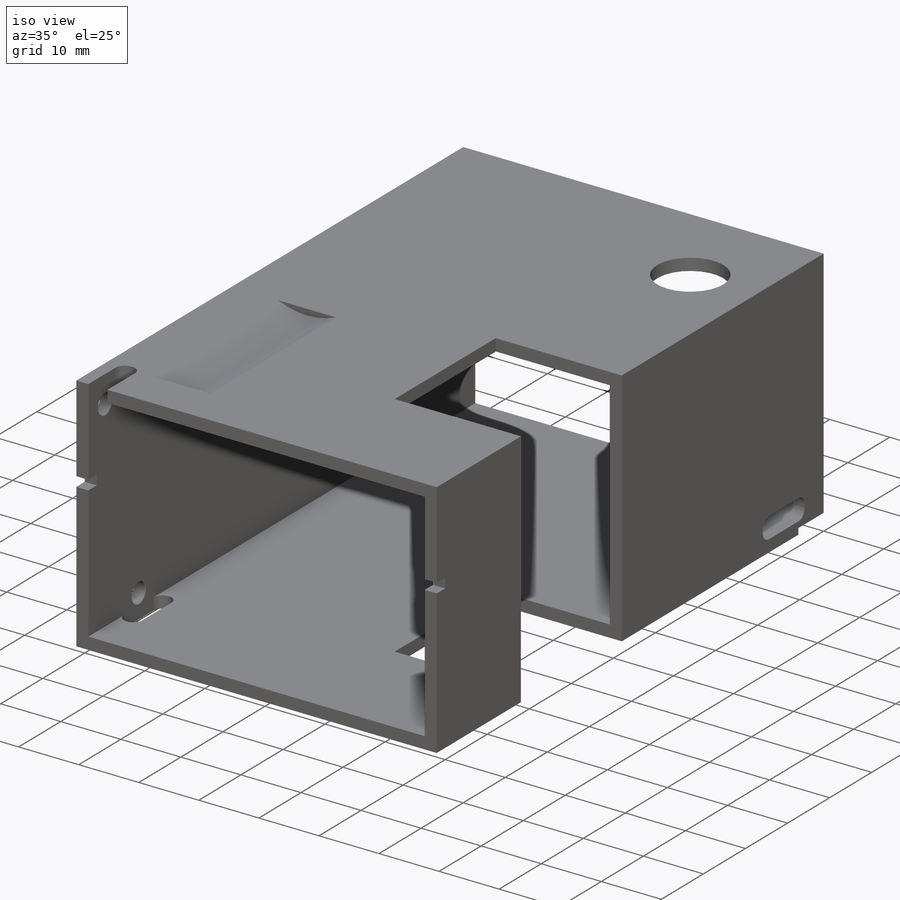
[diagram: iso view]
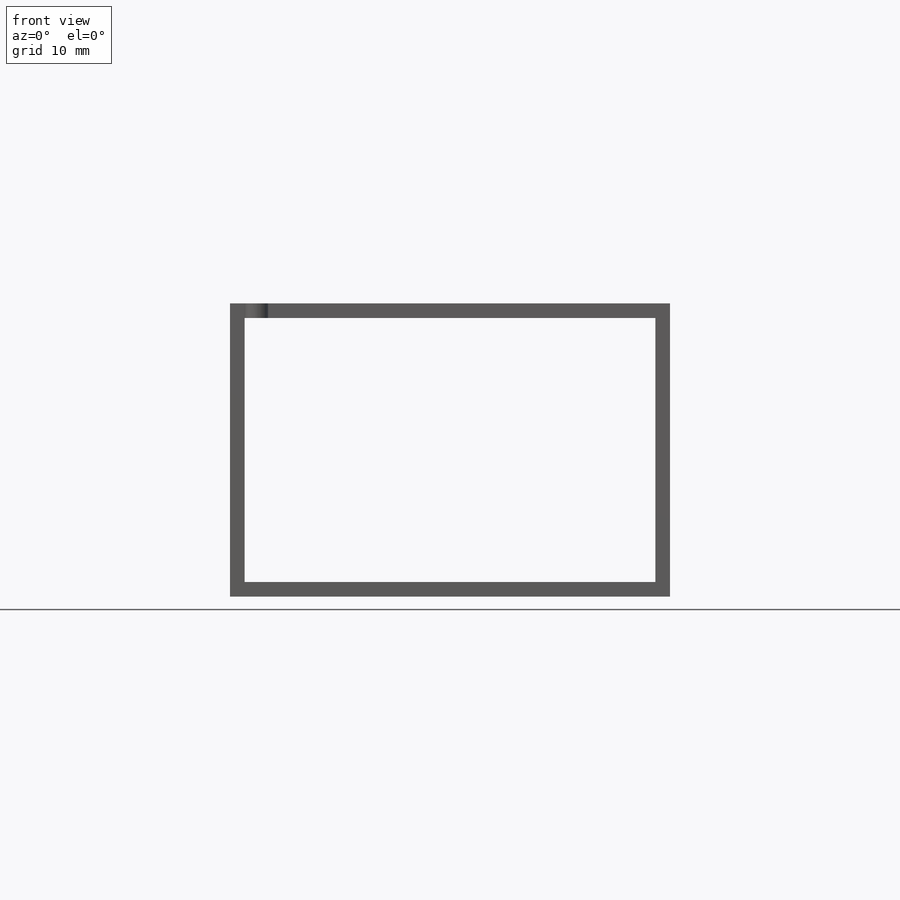
[diagram: front view]
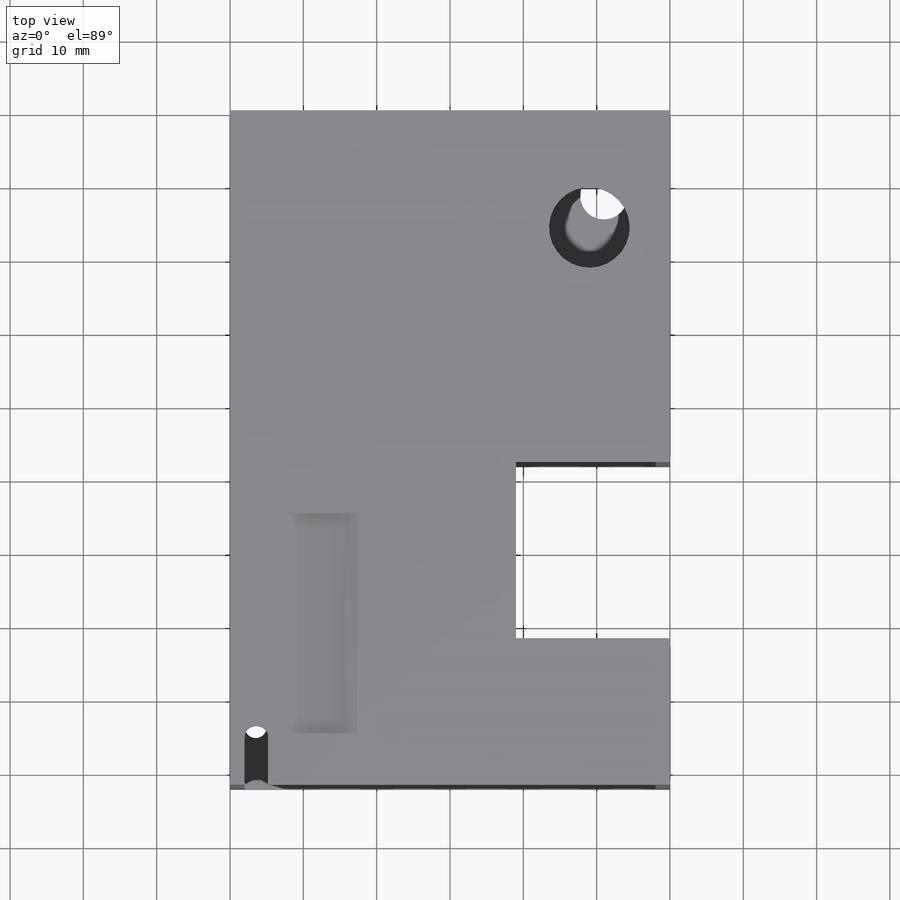
[diagram: top view]
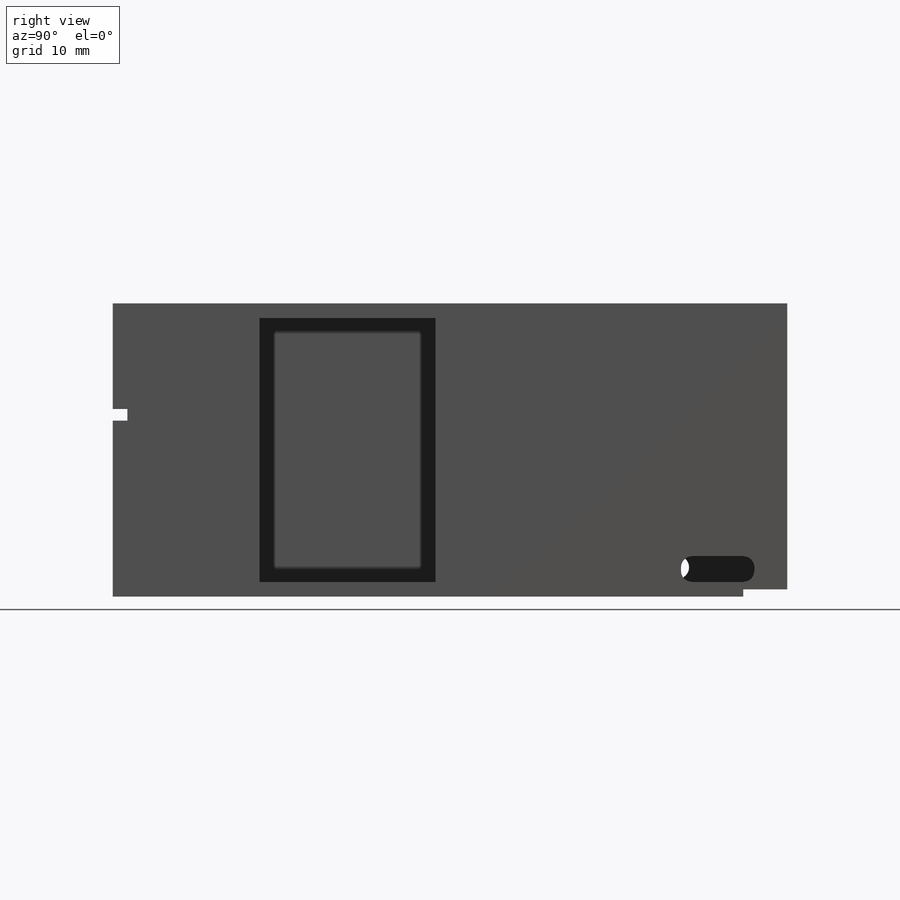
[diagram: right view]
SOLIDWORKS PART (.sldprt)
format: sldprt  version: not decoded by parser v0  size: 518,656 bytes
history: native  units: mm
features: sketch x16, cut_extrude x11, plane x3, extrude x2, material x1 (+13 scaffold rows collapsed)
feature tree (46):
  scaffold x13  (default folders/planes/origin — collapsed)
  material  "6063-T1"
  plane  "Спереди"
  plane  "Сверху"
  plane  "Справа"
  sketch  "Эскиз1"  dims[D1=40.0mm D2=60.0mm D3=2.0mm]
  extrude  "Бобышка-Вытянуть1"  Depth=92mm
  sketch  "Эскиз2"  dims[c1.D1=9.0mm c1.D2=10.0mm c1.D3=10.0mm c2.D2=11.0mm c2.D3=7.0mm]
  cut_extrude  "под_косой_ввод"  [1 undecoded]
  sketch  "Эскиз3"  dims[c1.D2=8.0mm c1.D1=48.0mm c2.D2=4.0mm c2.D3=39.0mm c2.D4=13.0mm c3.D2=24.0mm]
  cut_extrude  "Вырез-Вытянуть2"  [1 undecoded]
  sketch  "Эскиз9"  dims[c1.D1=1.5mm c1.D4=6.5mm c1.D5=6.5mm c1.D2=11.0mm c1.D3=3.5mm c2.D5=9.0mm]
  cut_extrude  "Вырез-Вытянуть4"  Depth=4mm
  sketch  "Эскиз10"  dims[c1.D1=1.5mm c1.D2=4.5mm c1.D3=3.5mm c1.D4=4.5mm c2.D2=10.0mm c2.D4=4.5mm]
  cut_extrude  "Вырез-Вытянуть5"  [1 undecoded]
  sketch  "Эскиз11"  dims[c1.D7=3.0mm c1.D1=10.0mm c1.D2=19.0mm c1.D3=16.0mm c1.D4=19.0mm c1.D5=5.0mm c1.D6=8.0mm c2.D2=21.0mm c2.D5=7.0mm c2.D1=63.0mm]
  cut_extrude  "Вырез-Вытянуть6"  [1 undecoded]
  sketch  "Эскиз14"  dims[D1=19.0mm D2=23.0mm D3=33.0mm D4=4.0mm D5=14.0mm D6=14.0mm]
  sketch  "Эскиз13"  dims[c1.D1=25.4mm c1.D2=93.98mm c1.4=25.4mm c1.D4=19.05mm c1.D7=33.02mm c1.D5=25.4mm c1.D3=50.8mm c1.D6=31.75mm c2.D5=58.42mm c2.D7=~8.980256mm c3.D7=90.0deg c3.D6=118.0deg c3.D8=~8.980256mm c4.D8=118.0deg c4.D9=~17.960512mm c5.D9=118.0deg c5.D3=50.8mm c5.D4=31.75mm c5.D5=58.42mm c5.D6=~4.444873mm c6.D6=120.0deg c6.D7=33.02mm c6.D8=~4.444873mm c7.D8=90.0deg c7.D9=~14.816244mm c8.D9=118.0deg c8.D1=12.7mm c8.D2=93.98mm c8.D3=25.4mm c9.D1=114.3mm c10.D1=135.0deg c11.D1=25.4mm c11.D2=93.98mm c11.D3=50.8mm c11.D4=~17.960512mm c12.D4=82.0deg c12.D5=~14.816244mm c13.D5=118.0deg c13.D6=12.7mm c13.D1=25.4mm c13.D2=93.98mm c13.D3=31.75mm c13.D4=~33.297463mm c14.D4=120.0deg c14.D5=~14.816244mm c15.D5=118.0deg c15.Диаметр сквозного отверстия=3.2mm c15.Глубина сквозного отверстия=2.0mm c15.Диаметр передней зенковки=5.5mm c15.D4=~3.666174mm c15.Угол передней зенковки=90.0deg c15.Диаметр задней зенковки=3.5mm c15.D6=~9.919017mm c15.Угол задней зенковки=90.0deg]
  sketch  "Эскиз16"  dims[c1.D2=~10.967845mm c1.D3=12.0mm c1.D1=1.0mm c2.D2=12.5mm c2.D3=11.0mm]
  cut_extrude  "Вырез-Вытянуть8"  Depth=30mm
  sketch  "Эскиз17"  dims[D1=11.0mm D2=11.0mm D3=16.0mm]
  cut_extrude  "Вырез-Вытянуть9"  [1 undecoded]
  sketch  "Эскиз18"  dims[D1=1.0mm D2=6.0mm]
  cut_extrude  "Вырез-Вытянуть10"  [1 undecoded]
  sketch  "Эскиз19"  dims[D3=1.5mm D1=3.2mm D2=8.0mm]
  cut_extrude  "Вырез-Вытянуть11"  [1 undecoded]
  extrude  "Отверстие с зазором M31"  [1 undecoded]
  sketch  "Эскиз21"  dims[D1=4.5mm D2=4.0mm D3=4.0mm D4=65.0mm D5=15.0mm]
  sketch  "Эскиз20"  dims[c1.D1=25.4mm c1.D2=93.98mm c1.4=25.4mm c1.D4=19.05mm c1.D7=33.02mm c1.D5=25.4mm c1.D3=50.8mm c1.D6=31.75mm c2.D5=58.42mm c2.D7=~8.980256mm c3.D7=90.0deg c3.D6=118.0deg c3.D8=~8.980256mm c4.D8=118.0deg c4.D9=~17.960512mm c5.D9=118.0deg c5.D3=50.8mm c5.D4=31.75mm c5.D5=58.42mm c5.D6=~4.444873mm c6.D6=120.0deg c6.D7=33.02mm c6.D8=~4.444873mm c7.D8=90.0deg c7.D9=~14.816244mm c8.D9=118.0deg c8.D1=12.7mm c8.D2=93.98mm c8.D3=25.4mm c9.D1=114.3mm c10.D1=135.0deg c11.D1=25.4mm c11.D2=93.98mm c11.D3=50.8mm c11.D4=~17.960512mm c12.D4=82.0deg c12.D5=~14.816244mm c13.D5=118.0deg c13.D6=12.7mm c13.D1=25.4mm c13.D2=93.98mm c13.D3=31.75mm c13.D4=~33.297463mm c14.D4=120.0deg c14.D5=~14.816244mm c15.D5=118.0deg c15.Диаметр сквозного отверстия=3.2mm c15.Глубина сквозного отверстия=2.0mm c15.Диаметр передней зенковки=3.4mm c15.D4=~3.666174mm c15.Угол передней зенковки=90.0deg c15.Диаметр задней зенковки=3.4mm c15.D6=~9.919017mm c15.Угол задней зенковки=90.0deg]
  sketch  "Эскиз22"  dims[D1=1.6mm D2=24.0mm D3=2.0mm]
  cut_extrude  "Вырез-Вытянуть12"  [1 undecoded]
  sketch  "Эскиз23"  dims[c1.D1=~0.93954mm c1.D2=1.5mm c2.D1=3.0mm c2.D2=10.0mm c2.D3=65.0mm c2.D4=15.0mm]
  cut_extrude  "Вырез-Вытянуть13"  [1 undecoded]
decode coverage: 19 of 29 modeling features carry decoded parameters
note: ~ marks probable driven/reference dimensions
note: 10 parameter values undecoded
summary: no parameter record found for 10 features
note: suppression state not decoded; provenance and decode notes live in map.json
